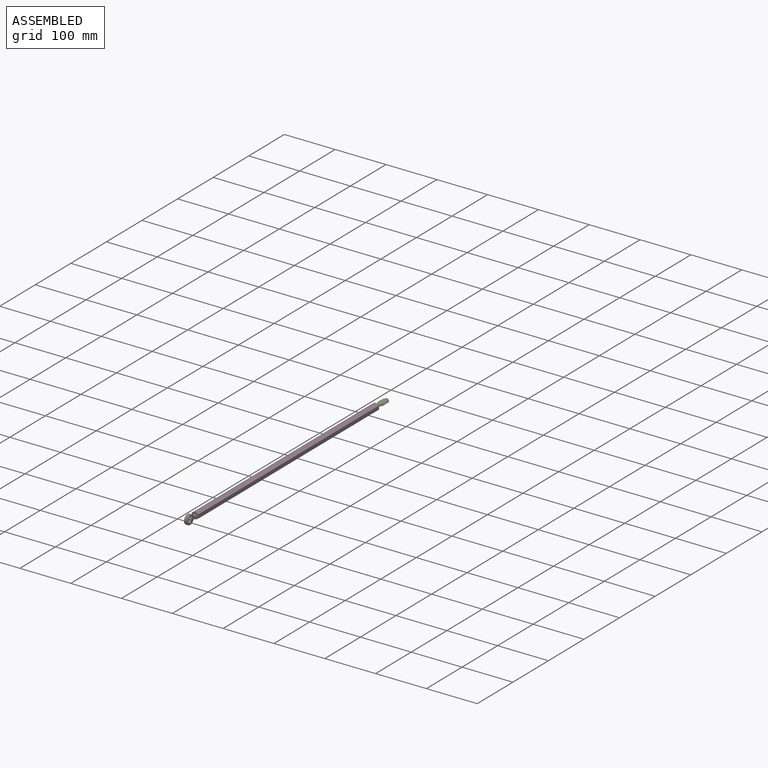
[diagram: assembled view]
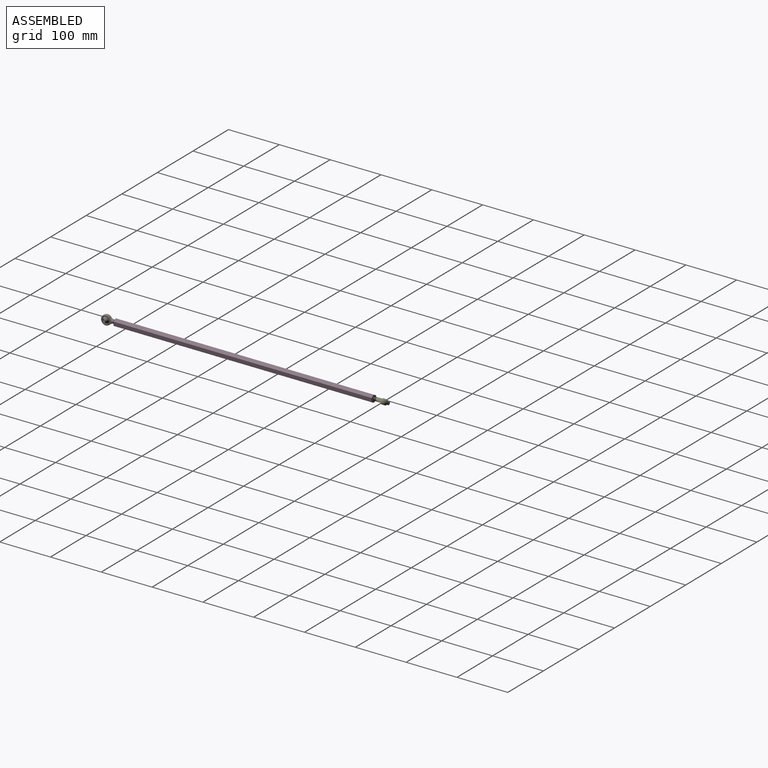
[diagram: assembled view, second angle]
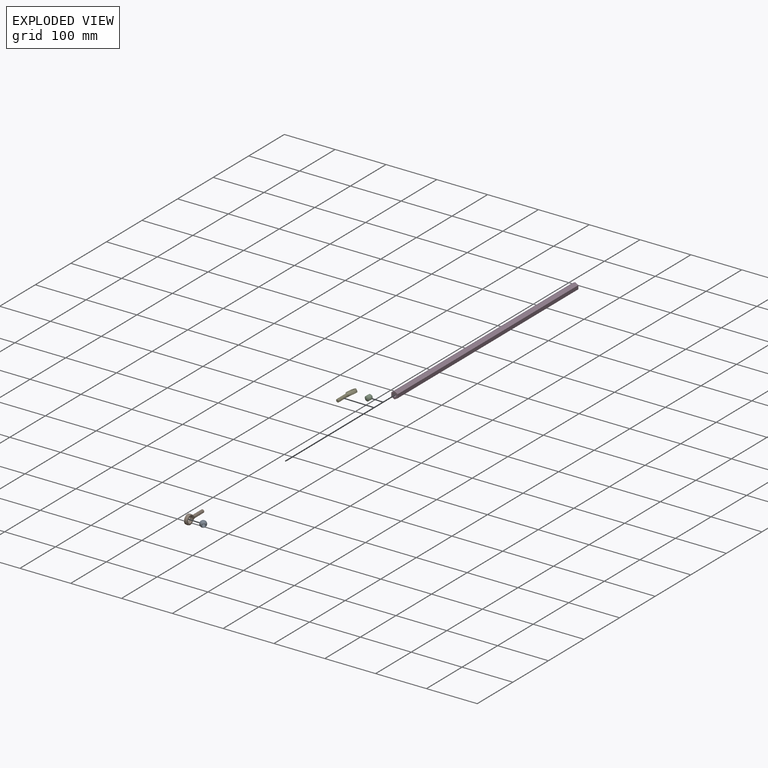
[diagram: exploded view]
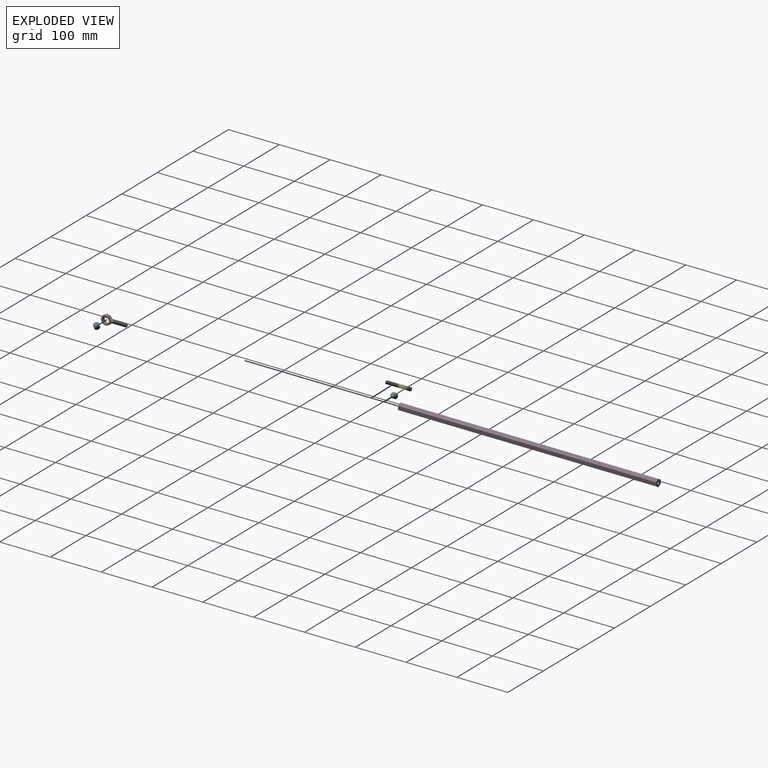
[diagram: exploded view, second angle]
ASSEMBLY  parts=5 mates=2
PART A: 6 faces, bbox 12.7x12.7x9.5 mm
  f0: cone r=3.17mm half-angle=45deg, axis (0,0,1), area 9.4mm2, adj f2,f4
  f1: cone r=3.49mm half-angle=45deg, axis (0,0,-1), area 9.4mm2, adj f2,f5
  f2: cylinder r=3.17mm len=8.89mm, axis (0,0,1), area 177.3mm2, adj f0,f1
  f3: sphere r=6.35mm, area 380mm2, adj f4,f5
  f4: plane 8.4x8.4mm, normal (0,0,1), area 17.1mm2, adj f0,f3
  f5: plane 8.4x8.4mm, normal (0,0,-1), area 17.1mm2, adj f1,f3
PART B: 13 faces, bbox 29x50.3x29 mm
  f0: cylinder r=6.41mm len=12.83mm, axis (0,0,1), area 255.9mm2, adj f11,f12
  f1: sphere r=9.53mm, area 299.7mm2, adj f2,f5,f11,f12
  f2: torus R=12.9mm, axis (0,-1,0), area 68mm2, adj f1,f4,f10,f11,f12
  f3: cone r=3.17mm half-angle=45deg, axis (0,1,0), area 14.2mm2, adj f4,f6,f7,f8,f9
  f4: cylinder r=3.17mm len=24.49mm, axis (0,1,0), area 61.1mm2, adj f2,f3,f7,f9
  f5: torus R=12.9mm, axis (0,-1,0), area 68mm2, adj f1,f10,f11,f12
  f6: plane 4.54x4.54mm, normal (0,-1,0), area 16.2mm2, adj f3
  f7: bspline ~25.63x6.35mm, area 337.5mm2, adj f3,f4,f8,f10
  f8: cylinder r=2.59mm len=25.08mm, axis (0,1,0), area 24.9mm2, adj f3,f7,f9,f10
  f9: bspline ~25.42x6.35mm, area 337mm2, adj f3,f4,f8,f10
  f10: plane 6.69x6.68mm, normal (0,-1,0), area 5.5mm2, adj f2,f5,f7,f8,f9
  f11: plane 24.35x19.05mm, normal (0,0,1), area 144.2mm2, adj f0,f1,f2,f5
  f12: plane 24.35x19.05mm, normal (0,0,-1), area 144.2mm2, adj f0,f1,f2,f5
PART C: same geometry as A
PART D: 9 faces, bbox 508x12.7x14.7 mm
  f0: plane 508x6.35mm, normal (0,-0.5,-0.87), area 3724.8mm2, adj f1,f6,f7,f8
  f1: plane 508x6.35mm, normal (0,0.5,-0.87), area 3724.8mm2, adj f0,f2,f7,f8
  f2: plane 508x7.33mm, normal (0,1,0), area 3724.8mm2, adj f1,f3,f7,f8
  f3: plane 508x6.35mm, normal (0,0.5,0.87), area 3724.8mm2, adj f2,f4,f7,f8
  f4: plane 508x6.35mm, normal (0,-0.5,0.87), area 3724.8mm2, adj f3,f6,f7,f8
  f5: cylinder r=2.93mm len=508mm, axis (-1,0,0), area 9341.7mm2, adj f7,f8
  f6: plane 508x7.33mm, normal (0,-1,0), area 3724.8mm2, adj f0,f4,f7,f8
  f7: plane 14.66x12.7mm, normal (1,0,0), area 112.8mm2, adj f0,f1,f2,f3,f4,f5,f6
  f8: plane 14.66x12.7mm, normal (-1,0,0), area 112.8mm2, adj f0,f1,f2,f3,f4,f5,f6
PART E: same geometry as B
PLACE A rot(axis=(-0.67,-0.74,0.01),76.3deg) t=(233.04,-431.97,18.4)mm
PLACE B rot(axis=(-0.72,0,-0.69),180deg) t=(238.27,-408.35,8.94)mm
PLACE C rot(axis=(0,-1,0),37.7deg) t=(238.27,109.06,8.94)mm
PLACE D rot(axis=(0,0,-1),90deg) t=(238.27,103.11,8.94)mm fixed
PLACE E rot(axis=(0,1,0),151.6deg) t=(238.27,109.06,8.94)mm
MATE cylindrical B.f3 <-> D.f5  axis (0,1,0) through (238.27,-382.95,8.94)mm
MATE ball B.f0 <-> A.f0  axis (1,0,-0.04) through (238.27,-422.63,8.94)mm
